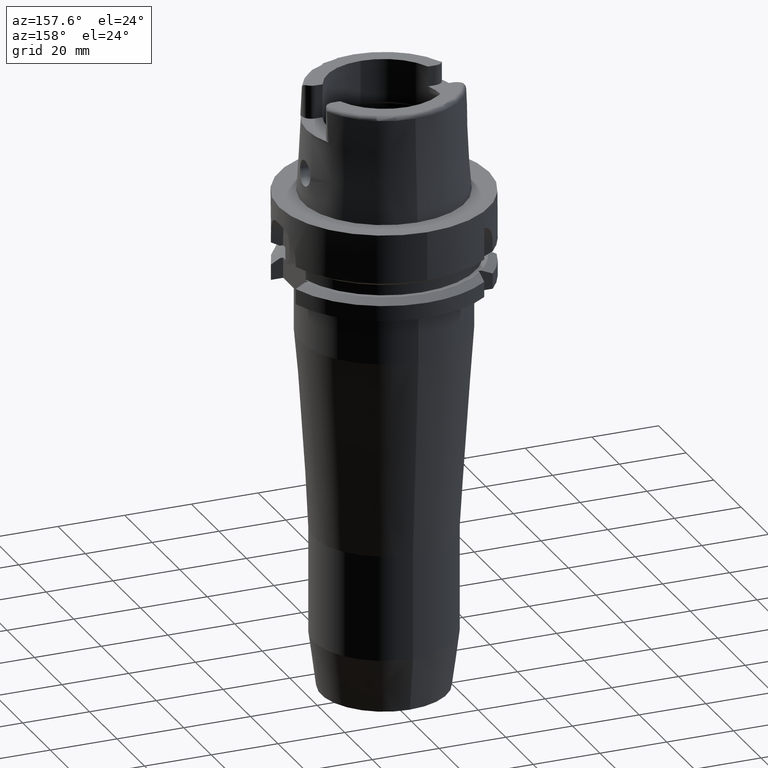
[diagram: clean part render]
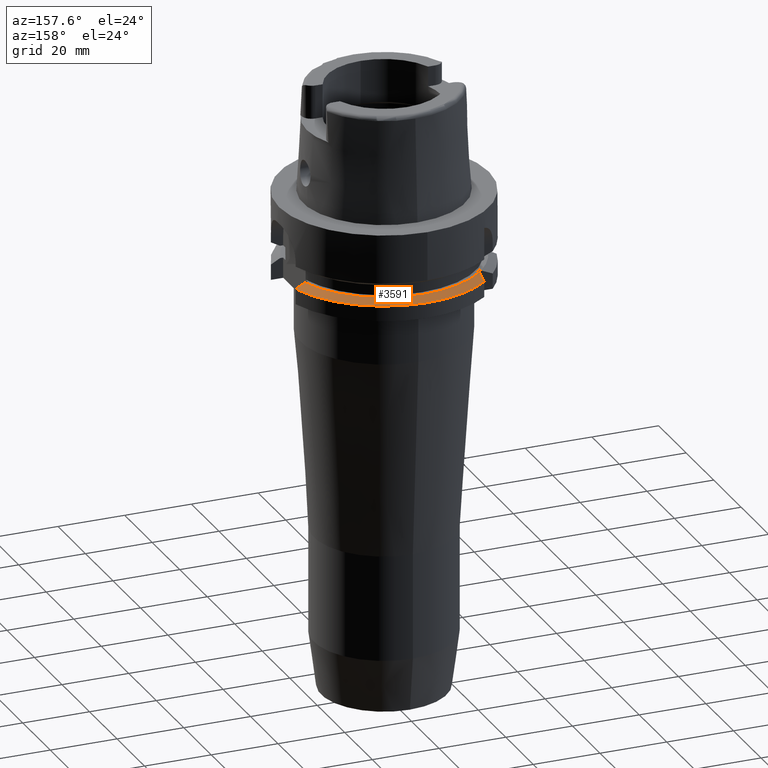
[diagram: same view with one face highlighted and labeled with its STEP entity id]
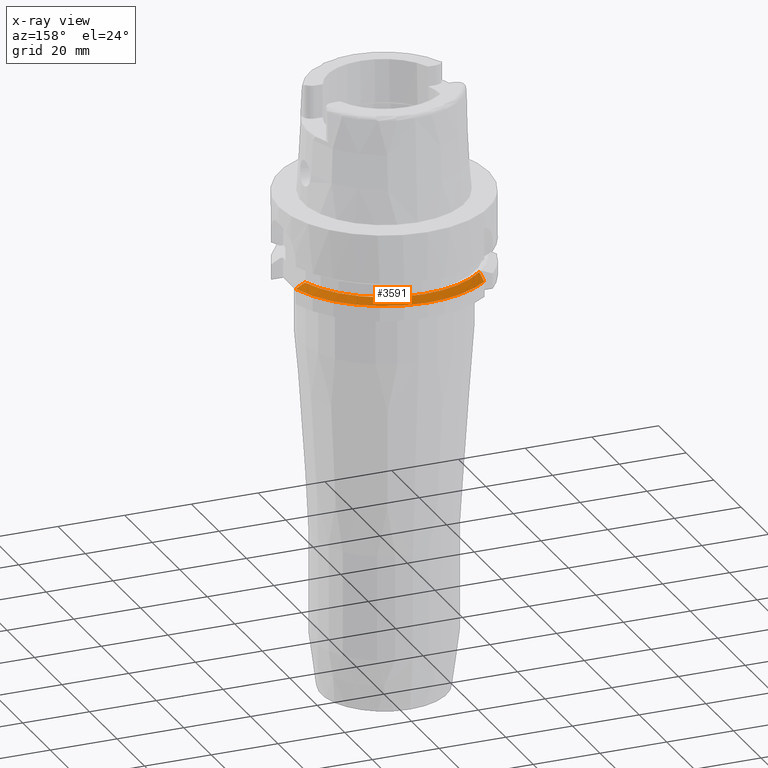
[diagram: x-ray of the same camera — body ghosted, the highlighted face saturated]
A machine part, auxiliary view. The second image highlights one B-rep face of the part: STEP entity #3591.
The next image is the same camera in x-ray: the body ghosted, the highlighted face saturated — about 0% of this face is hidden behind the body in this view.
In plain terms, the highlighted conical surface has half-angle 60 deg.
Its self-contained STEP definition (entity closure, byte-faithful):
#1085=CARTESIAN_POINT('',(2.746035048453E1,9.000000214588E0,-1.9875E1));
#1086=CARTESIAN_POINT('',(2.776361594316E1,9.000000214588E0,-2.004138215153E1));
#1087=CARTESIAN_POINT('',(2.836990141424E1,8.999999992193E0,-2.037457250331E1));
#1088=CARTESIAN_POINT('',(2.927877116597E1,8.999999705444E0,-2.087538368783E1));
#1089=CARTESIAN_POINT('',(2.988424700235E1,9.000000692502E0,-2.121004212702E1));
#1090=CARTESIAN_POINT('',(3.018691748978E1,9.000000692502E0,-2.137750466033E1));
#1459=CARTESIAN_POINT('',(0.E0,0.E0,-1.9875E1));
#1460=DIRECTION('',(0.E0,0.E0,-1.E0));
#1461=DIRECTION('',(-6.920991112636E-1,7.218024800374E-1,0.E0));
#1462=AXIS2_PLACEMENT_3D('',#1459,#1460,#1461);
#1467=CARTESIAN_POINT('',(0.E0,0.E0,-1.9875E1));
#1468=DIRECTION('',(0.E0,0.E0,-1.E0));
#1469=DIRECTION('',(0.E0,1.E0,0.E0));
#1470=AXIS2_PLACEMENT_3D('',#1467,#1468,#1469);
#1513=CARTESIAN_POINT('',(-1.999999142108E1,2.085843323184E1,-1.9875E1));
#1514=CARTESIAN_POINT('',(-1.999999142108E1,2.123642018647E1,
-2.003251976956E1));
#1515=CARTESIAN_POINT('',(-2.000000520940E1,2.199807963377E1,
-2.035411912617E1));
#1516=CARTESIAN_POINT('',(-1.999999463549E1,2.315735167620E1,
-2.085507791751E1));
#1517=CARTESIAN_POINT('',(-2.000000904426E1,2.394131812656E1,
-2.120140456827E1));
#1518=CARTESIAN_POINT('',(-2.000000904426E1,2.433617961450E1,
-2.137753148538E1));
#1523=CARTESIAN_POINT('',(0.E0,0.E0,-2.137749907476E1));
#1524=DIRECTION('',(0.E0,0.E0,-1.E0));
#1525=DIRECTION('',(-6.349206349206E-1,7.725773665802E-1,0.E0));
#1526=AXIS2_PLACEMENT_3D('',#1523,#1524,#1525);
#1531=CARTESIAN_POINT('',(0.E0,0.E0,-2.137749907476E1));
#1532=DIRECTION('',(0.E0,0.E0,-1.E0));
#1533=DIRECTION('',(0.E0,1.E0,0.E0));
#1534=AXIS2_PLACEMENT_3D('',#1531,#1532,#1533);
#2476=CARTESIAN_POINT('',(-2.000000904426E1,2.433617961450E1,
-2.137753148538E1));
#2477=VERTEX_POINT('',#2476);
#2478=VERTEX_POINT('',#1513);
#2496=CARTESIAN_POINT('',(3.018691748978E1,9.000000692502E0,-2.137750466033E1));
#2497=VERTEX_POINT('',#2496);
#2498=CARTESIAN_POINT('',(0.E0,3.15E1,-2.137749907476E1));
#2499=VERTEX_POINT('',#2498);
#2544=VERTEX_POINT('',#1085);
#2545=CARTESIAN_POINT('',(2.111091848958E-14,2.889759526419E1,-1.9875E1));
#2546=VERTEX_POINT('',#2545);
#3578=CARTESIAN_POINT('',(0.E0,0.E0,-2.062624953738E1));
#3579=DIRECTION('',(0.E0,0.E0,-1.E0));
#3580=DIRECTION('',(0.E0,-1.E0,0.E0));
#3581=AXIS2_PLACEMENT_3D('',#3578,#3579,#3580);
#3582=CONICAL_SURFACE('',#3581,3.019879763210E1,6.E1);
#3583=ORIENTED_EDGE('',*,*,#3247,.T.);
#3584=ORIENTED_EDGE('',*,*,#3268,.T.);
#3585=ORIENTED_EDGE('',*,*,#3266,.T.);
#3586=ORIENTED_EDGE('',*,*,#3283,.F.);
#3587=ORIENTED_EDGE('',*,*,#3562,.F.);
#3588=ORIENTED_EDGE('',*,*,#3560,.F.);
#3589=EDGE_LOOP('',(#3583,#3584,#3585,#3586,#3587,#3588));
#3590=FACE_OUTER_BOUND('',#3589,.F.);
#1091=B_SPLINE_CURVE_WITH_KNOTS('',3,(#1085,#1086,#1087,#1088,#1089,#1090),
.UNSPECIFIED.,.F.,.F.,(4,1,1,4),(0.E0,3.333333333333E-1,6.666666666667E-1,1.E0),
.UNSPECIFIED.);
#1463=CIRCLE('',#1462,2.889759526419E1);
#1471=CIRCLE('',#1470,2.889759526419E1);
#1519=B_SPLINE_CURVE_WITH_KNOTS('',3,(#1513,#1514,#1515,#1516,#1517,#1518),
.UNSPECIFIED.,.F.,.F.,(4,1,1,4),(0.E0,3.333333333333E-1,6.666666666667E-1,1.E0),
.UNSPECIFIED.);
#1527=CIRCLE('',#1526,3.15E1);
#1535=CIRCLE('',#1534,3.15E1);
#3247=EDGE_CURVE('',#2478,#2477,#1519,.T.);
#3266=EDGE_CURVE('',#2499,#2497,#1535,.T.);
#3268=EDGE_CURVE('',#2477,#2499,#1527,.T.);
#3283=EDGE_CURVE('',#2544,#2497,#1091,.T.);
#3560=EDGE_CURVE('',#2478,#2546,#1463,.T.);
#3562=EDGE_CURVE('',#2546,#2544,#1471,.T.);
#3591=ADVANCED_FACE('',(#3590),#3582,.T.);